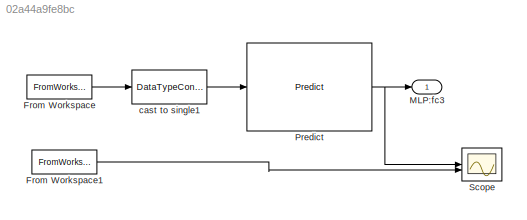
MODEL slx_02a44a9fe8bc
KIND model
CONFIG FixedStep = 1
CONFIG SolverName = FixedStepDiscrete
CONFIG StopTime = steps
BLOCK [FromWorkspace] From Workspace
  VariableName = X_in
BLOCK [FromWorkspace] From Workspace1
  VariableName = true_SOC
BLOCK [Outport] MLP:fc3
BLOCK [Reference] Predict  REF=deeplib/Predict
  SourceBlock = deeplib/Predict
  SourceType = Predict
BLOCK [Scope] Scope
  ActiveDisplayYMaximum = 1.1110612191259861
  ActiveDisplayYMinimum = 0.14075001701712611
  Floating = off
  GraphicalSettings = {"Style":{"BackgroundColor":[0.12941176470588237,0.12941176470588237,0.12941176470588237],"AxesColor":[0.07058823529411765,0.07058823529411765,0.07058823529411765],"LabelsColor":[0.8509803921568627,0.8509803921568627,0.8509803921568627],"PreserveColors":false,"Visible":[true,true],"LineStyle":["-","-"],"LineWidth":[1.5,1.5],"BarWidth":[0.9,0.9],"LineColor":["auto","auto"],"LineFaceAlpha":[1,1],"Li...<+2161ch>
  MultipleDisplayCache = [{"MaxYLimMag":1.1110612191259861,"MaxYLimReal":1.1110612191259861,"MinYLimMag":0.14075001701712611,"MinYLimReal":0.14075001701712611,"PlotAsMagnitudePhase":false,"ShowGrid":true,"ShowLegend":false,"Title":"%<SignalLabel>","YLabel":""}]
  NumInputPorts = 2
  ScopeFrameLocation = window
  WasSavedAsWebScope = on
  WindowPosition = [476.000000,281.000000,560.000000,420.000000,]
BLOCK [DataTypeConversion] cast to single1
  OutDataTypeStr = single
  RndMeth = Floor
  SaturateOnIntegerOverflow = off
LINE From Workspace1:1 -> Scope:2
LINE From Workspace:1 -> cast to single1:1
NET Predict:1 -> MLP:fc3:1, Scope:1
LINE cast to single1:1 -> Predict:1
note: NET lines group one-source signal fan-out (src -> all destinations, sorted); 1:1 wires keep LINE
